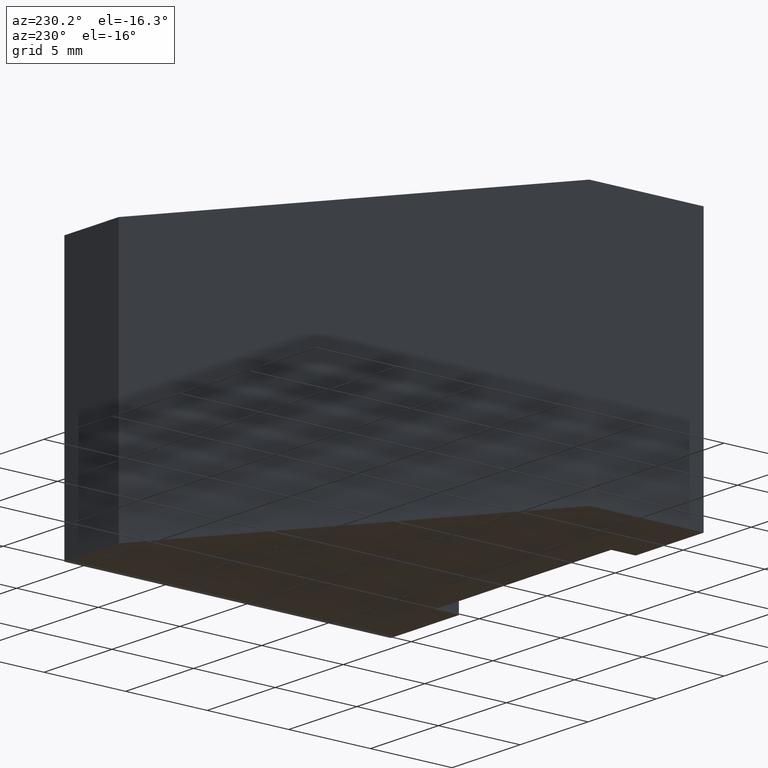
[diagram: clean part render]
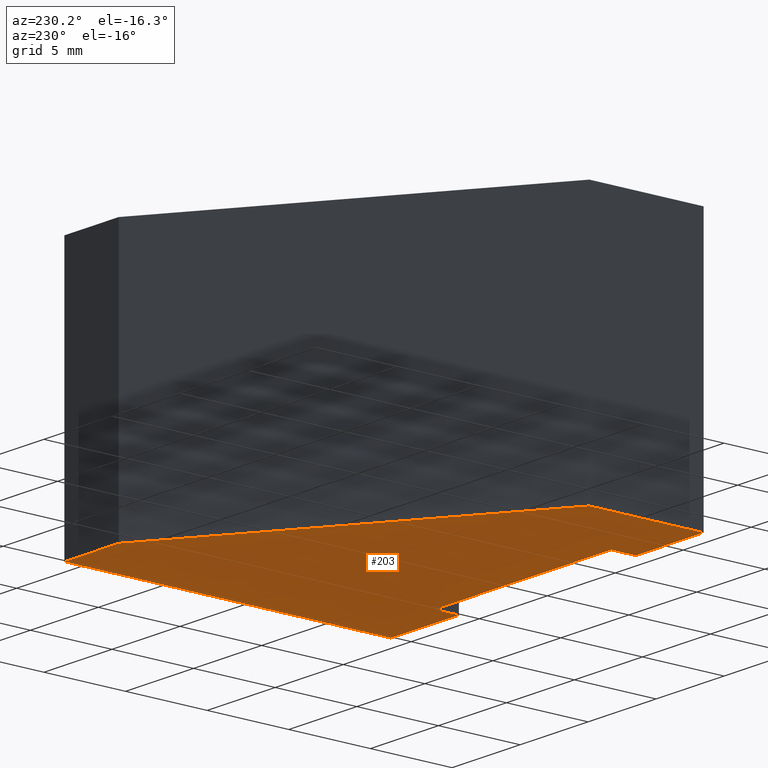
[diagram: same view with one face highlighted and labeled with its STEP entity id]
A machine part, auxiliary view. The second image highlights one B-rep face of the part: STEP entity #203.
In plain terms, the highlighted planar face has unit normal (0, 0, 1).
Its self-contained STEP definition (entity closure, byte-faithful):
#17=FACE_OUTER_BOUND('',#28,.T.);
#28=EDGE_LOOP('',(#138,#139,#140,#141,#142,#143,#144,#145,#146));
#39=LINE('',#303,#66);
#40=LINE('',#305,#67);
#41=LINE('',#307,#68);
#42=LINE('',#309,#69);
#43=LINE('',#311,#70);
#44=LINE('',#313,#71);
#45=LINE('',#315,#72);
#46=LINE('',#317,#73);
#47=LINE('',#318,#74);
#66=VECTOR('',#252,10.);
#67=VECTOR('',#253,10.);
#68=VECTOR('',#254,10.);
#69=VECTOR('',#255,10.);
#70=VECTOR('',#256,10.);
#71=VECTOR('',#257,10.);
#72=VECTOR('',#258,10.);
#73=VECTOR('',#259,10.);
#74=VECTOR('',#260,10.);
#93=VERTEX_POINT('',#301);
#94=VERTEX_POINT('',#302);
#95=VERTEX_POINT('',#304);
#96=VERTEX_POINT('',#306);
#97=VERTEX_POINT('',#308);
#98=VERTEX_POINT('',#310);
#99=VERTEX_POINT('',#312);
#100=VERTEX_POINT('',#314);
#101=VERTEX_POINT('',#316);
#111=EDGE_CURVE('',#93,#94,#39,.T.);
#112=EDGE_CURVE('',#95,#93,#40,.T.);
#113=EDGE_CURVE('',#96,#95,#41,.T.);
#114=EDGE_CURVE('',#97,#96,#42,.T.);
#115=EDGE_CURVE('',#98,#97,#43,.T.);
#116=EDGE_CURVE('',#99,#98,#44,.T.);
#117=EDGE_CURVE('',#100,#99,#45,.T.);
#118=EDGE_CURVE('',#101,#100,#46,.T.);
#119=EDGE_CURVE('',#94,#101,#47,.T.);
#138=ORIENTED_EDGE('',*,*,#111,.F.);
#139=ORIENTED_EDGE('',*,*,#112,.F.);
#140=ORIENTED_EDGE('',*,*,#113,.F.);
#141=ORIENTED_EDGE('',*,*,#114,.F.);
#142=ORIENTED_EDGE('',*,*,#115,.F.);
#143=ORIENTED_EDGE('',*,*,#116,.F.);
#144=ORIENTED_EDGE('',*,*,#117,.F.);
#145=ORIENTED_EDGE('',*,*,#118,.F.);
#146=ORIENTED_EDGE('',*,*,#119,.F.);
#192=PLANE('',#237);
#203=ADVANCED_FACE('',(#17),#192,.F.);
#237=AXIS2_PLACEMENT_3D('',#300,#250,#251);
#250=DIRECTION('center_axis',(0.,0.,1.));
#251=DIRECTION('ref_axis',(1.,0.,0.));
#252=DIRECTION('',(-4.44089209850063E-16,1.,0.));
#253=DIRECTION('',(1.,0.,0.));
#254=DIRECTION('',(-2.22044604925031E-15,-1.,0.));
#255=DIRECTION('',(1.,0.,0.));
#256=DIRECTION('',(-7.40148683083438E-16,1.,0.));
#257=DIRECTION('',(1.,0.,0.));
#258=DIRECTION('',(-3.1720657846433E-16,-1.,0.));
#259=DIRECTION('',(-0.825307261249832,-0.56468391559199,0.));
#260=DIRECTION('',(-1.,-1.11022302462516E-15,0.));
#300=CARTESIAN_POINT('Origin',(1.76772664463683,7.96087948512347,-8.));
#301=CARTESIAN_POINT('',(11.5,0.,-8.));
#302=CARTESIAN_POINT('',(11.5,20.,-8.));
#303=CARTESIAN_POINT('',(11.5,20.,-8.));
#304=CARTESIAN_POINT('',(6.5,0.,-8.));
#305=CARTESIAN_POINT('',(11.5,0.,-8.));
#306=CARTESIAN_POINT('',(6.5,1.5,-8.));
#307=CARTESIAN_POINT('',(6.5,0.,-8.));
#308=CARTESIAN_POINT('',(-6.5,1.5,-8.));
#309=CARTESIAN_POINT('',(6.5,1.5,-8.));
#310=CARTESIAN_POINT('',(-6.5,0.,-8.));
#311=CARTESIAN_POINT('',(-6.5,1.5,-8.));
#312=CARTESIAN_POINT('',(-11.5,0.,-8.));
#313=CARTESIAN_POINT('',(-6.5,0.,-8.));
#314=CARTESIAN_POINT('',(-11.5,7.,-8.));
#315=CARTESIAN_POINT('',(-11.5,0.,-8.));
#316=CARTESIAN_POINT('',(7.49999999999999,20.,-8.));
#317=CARTESIAN_POINT('',(-11.5,7.,-8.));
#318=CARTESIAN_POINT('',(7.49999999999999,20.,-8.));